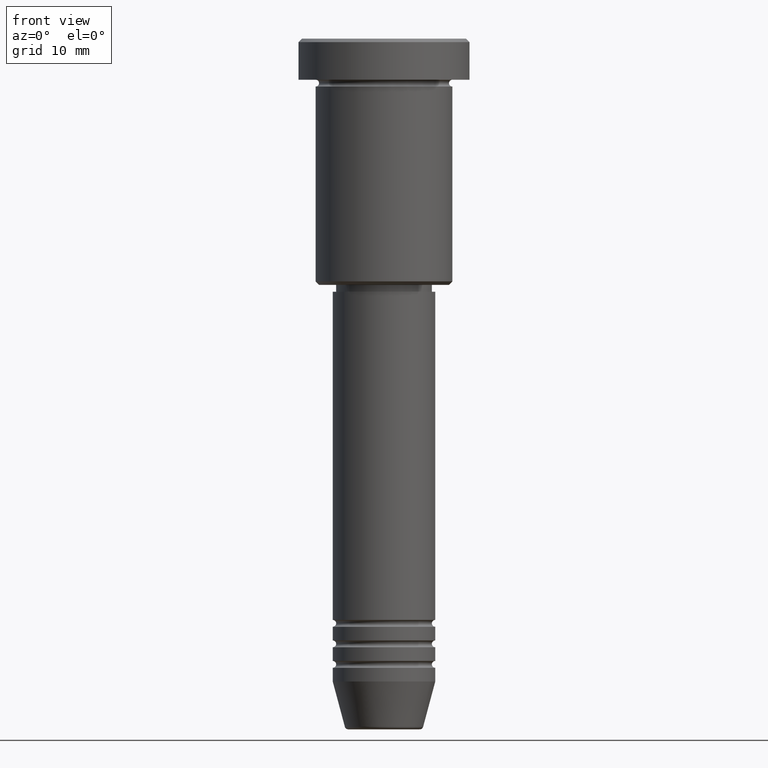
[diagram: clean part render]
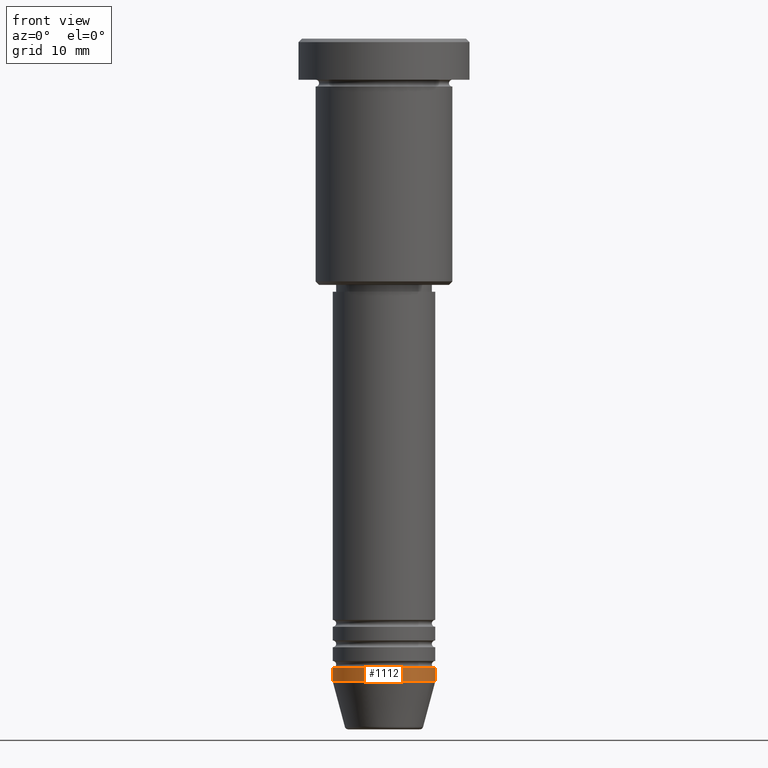
[diagram: same view with one face highlighted and labeled with its STEP entity id]
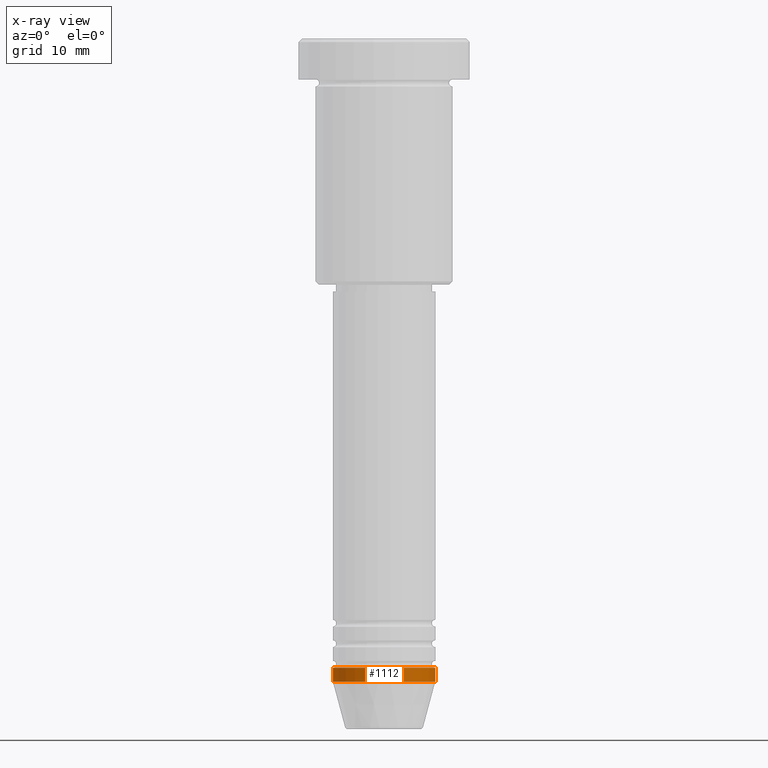
[diagram: x-ray of the same camera — body ghosted, the highlighted face saturated]
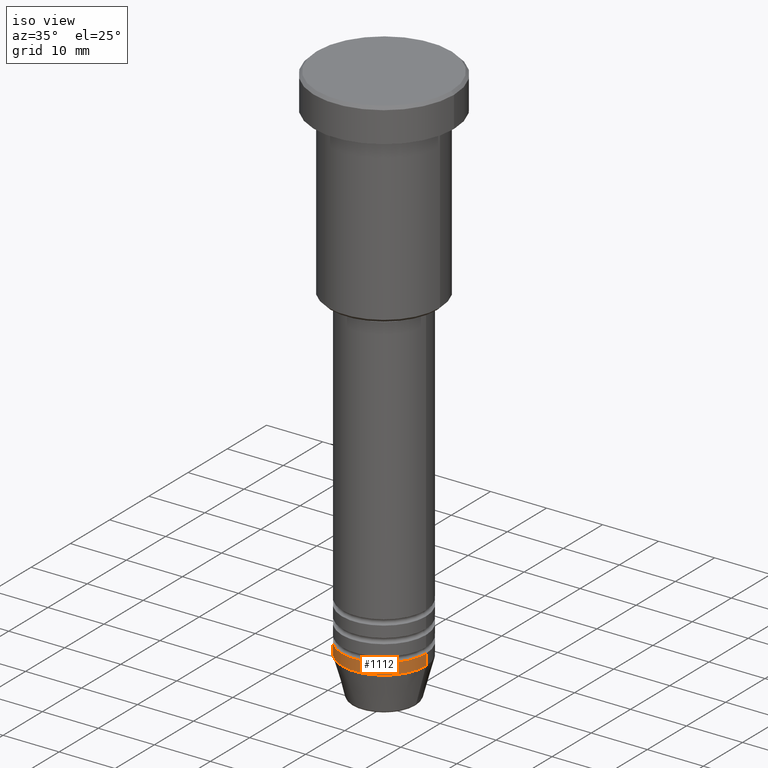
[diagram: same view with one face highlighted and labeled with its STEP entity id]
A machine part, front view. The second image highlights one B-rep face of the part: STEP entity #1112.
The next image is the same camera in x-ray: the body ghosted, the highlighted face saturated — about 0% of this face is hidden behind the body in this view.
A second angle (iso view) of the same face is appended — the face is thin or edge-on in the first view.
In plain terms, the highlighted cylindrical surface (partial cylindrical patch) has radius 7.5 mm, axis along (-0, -0, 1).
Its self-contained STEP definition (entity closure, byte-faithful):
#33 = CIRCLE ( 'NONE', #373, 7.500000000000000000 ) ;
#47 = VERTEX_POINT ( 'NONE', #175 ) ;
#85 = DIRECTION ( 'NONE',  ( 1.000000000000000000, 0.000000000000000000, 0.000000000000000000 ) ) ;
#93 = VECTOR ( 'NONE', #521, 1000.000000000000000 ) ;
#149 = CARTESIAN_POINT ( 'NONE',  ( -7.500000000000000000, 9.184850993605147944E-16, -92.00000000000000000 ) ) ;
#155 = ORIENTED_EDGE ( 'NONE', *, *, #201, .F. ) ;
#170 = CARTESIAN_POINT ( 'NONE',  ( 0.000000000000000000, 0.000000000000000000, -92.00000000000000000 ) ) ;
#171 = ORIENTED_EDGE ( 'NONE', *, *, #939, .T. ) ;
#175 = CARTESIAN_POINT ( 'NONE',  ( 7.500000000000000000, 0.000000000000000000, -92.00000000000000000 ) ) ;
#201 = EDGE_CURVE ( 'NONE', #791, #1150, #652, .T. ) ;
#203 = AXIS2_PLACEMENT_3D ( 'NONE', #363, #1005, #85 ) ;
#275 = CARTESIAN_POINT ( 'NONE',  ( 0.000000000000000000, 0.000000000000000000, -94.00000000000000000 ) ) ;
#304 = EDGE_CURVE ( 'NONE', #1150, #47, #33, .T. ) ;
#354 = VERTEX_POINT ( 'NONE', #846 ) ;
#363 = CARTESIAN_POINT ( 'NONE',  ( 0.000000000000000000, 0.000000000000000000, 0.000000000000000000 ) ) ;
#373 = AXIS2_PLACEMENT_3D ( 'NONE', #170, #684, #511 ) ;
#395 = EDGE_LOOP ( 'NONE', ( #155, #681, #171, #982 ) ) ;
#405 = VECTOR ( 'NONE', #1128, 1000.000000000000000 ) ;
#473 = EDGE_CURVE ( 'NONE', #791, #354, #617, .T. ) ;
#506 = LINE ( 'NONE', #1087, #93 ) ;
#511 = DIRECTION ( 'NONE',  ( 1.000000000000000000, 0.000000000000000000, 0.000000000000000000 ) ) ;
#519 = CYLINDRICAL_SURFACE ( 'NONE', #203, 7.500000000000000000 ) ;
#521 = DIRECTION ( 'NONE',  ( -0.000000000000000000, -0.000000000000000000, 1.000000000000000000 ) ) ;
#617 = CIRCLE ( 'NONE', #773, 7.500000000000000000 ) ;
#652 = LINE ( 'NONE', #1047, #405 ) ;
#681 = ORIENTED_EDGE ( 'NONE', *, *, #473, .T. ) ;
#684 = DIRECTION ( 'NONE',  ( -0.000000000000000000, -0.000000000000000000, 1.000000000000000000 ) ) ;
#733 = DIRECTION ( 'NONE',  ( 1.000000000000000000, 0.000000000000000000, 0.000000000000000000 ) ) ;
#773 = AXIS2_PLACEMENT_3D ( 'NONE', #275, #987, #733 ) ;
#791 = VERTEX_POINT ( 'NONE', #1122 ) ;
#819 = FACE_OUTER_BOUND ( 'NONE', #395, .T. ) ;
#846 = CARTESIAN_POINT ( 'NONE',  ( 7.500000000000000000, 0.000000000000000000, -94.00000000000000000 ) ) ;
#939 = EDGE_CURVE ( 'NONE', #354, #47, #506, .T. ) ;
#982 = ORIENTED_EDGE ( 'NONE', *, *, #304, .F. ) ;
#987 = DIRECTION ( 'NONE',  ( -0.000000000000000000, -0.000000000000000000, 1.000000000000000000 ) ) ;
#1005 = DIRECTION ( 'NONE',  ( -0.000000000000000000, -0.000000000000000000, 1.000000000000000000 ) ) ;
#1047 = CARTESIAN_POINT ( 'NONE',  ( -7.500000000000000000, 9.184850993605147944E-16, 0.000000000000000000 ) ) ;
#1087 = CARTESIAN_POINT ( 'NONE',  ( 7.500000000000000000, 0.000000000000000000, 0.000000000000000000 ) ) ;
#1112 = ADVANCED_FACE ( 'NONE', ( #819 ), #519, .T. ) ;
#1122 = CARTESIAN_POINT ( 'NONE',  ( -7.500000000000000000, 9.184850993605147944E-16, -94.00000000000000000 ) ) ;
#1128 = DIRECTION ( 'NONE',  ( -0.000000000000000000, -0.000000000000000000, 1.000000000000000000 ) ) ;
#1150 = VERTEX_POINT ( 'NONE', #149 ) ;